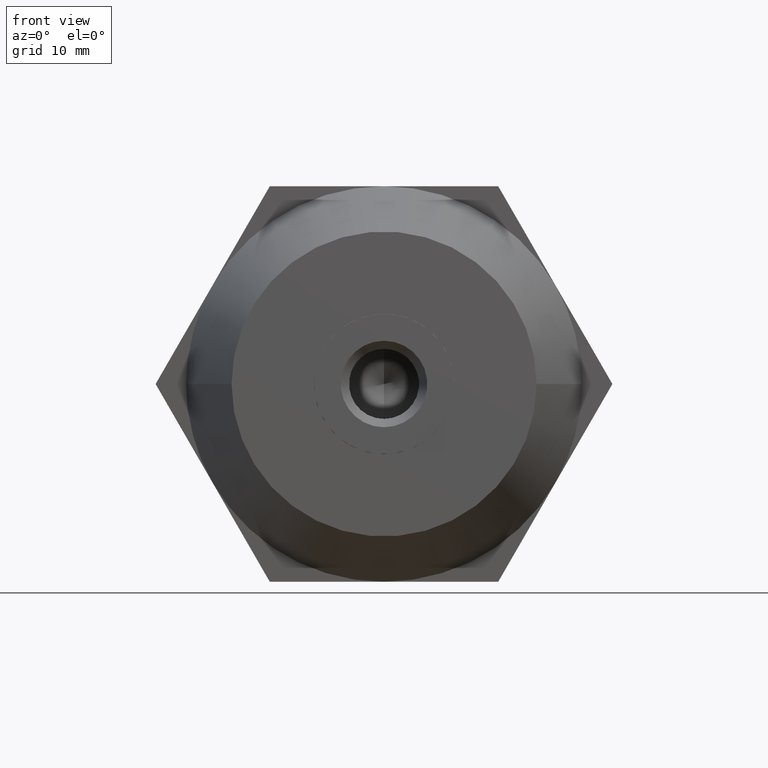
[diagram: clean part render]
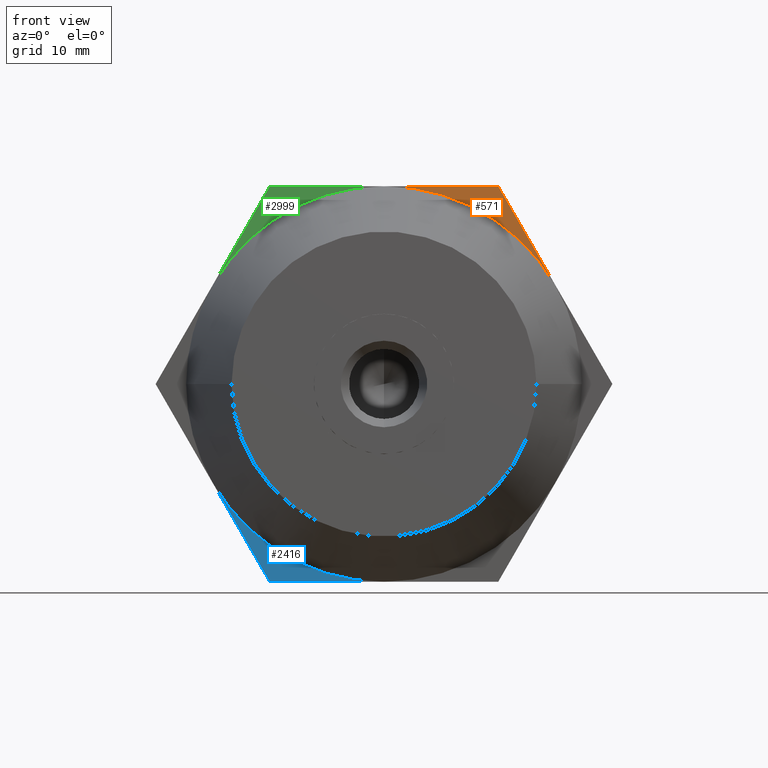
[diagram: same view with three faces highlighted in distinct colors, each labeled with its STEP entity id]
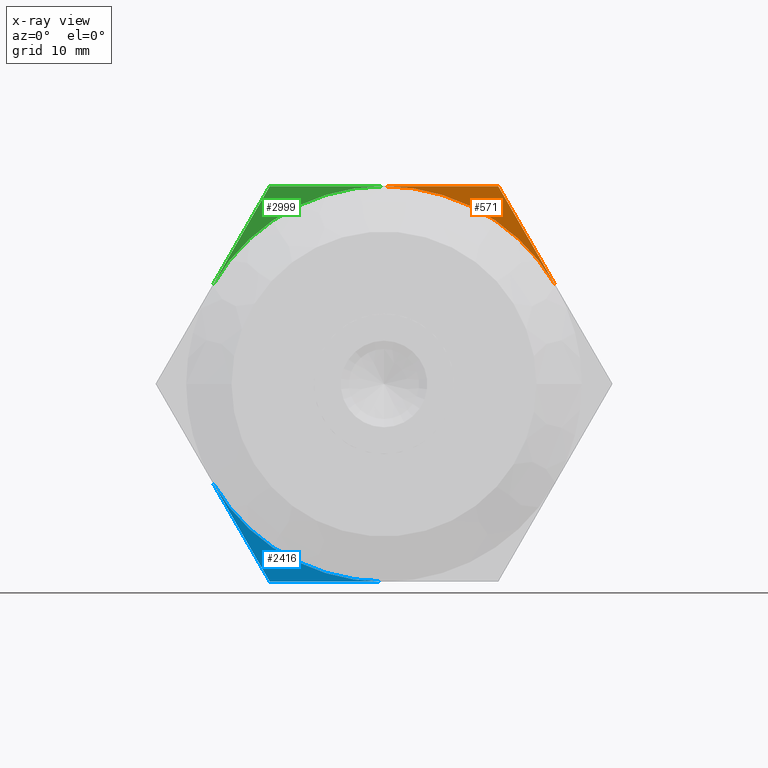
[diagram: x-ray of the same camera — body ghosted, the three highlighted faces saturated]
A machine part, front view with three faces highlighted in distinct colors.
The next image is the same camera in x-ray (body ghosted, the three faces saturated) — at least one of them is partly hidden behind the body in this view.
Their STEP definitions:

[orange] entity #571 — the highlighted planar face has unit normal (0, 1, 0).
#238 = CARTESIAN_POINT ( 'NONE',  ( 13.85640646055101900, -5.000000000000000000, 24.00000000000000000 ) ) ;
#358 = FACE_OUTER_BOUND ( 'NONE', #482, .T. ) ;
#363 = LINE ( 'NONE', #238, #3617 ) ;
#482 = EDGE_LOOP ( 'NONE', ( #2239, #2380, #1712 ) ) ;
#559 = CARTESIAN_POINT ( 'NONE',  ( 20.78460969082655300, -5.000000000000000000, 12.00000000000000000 ) ) ;
#571 = ADVANCED_FACE ( 'NONE', ( #358 ), #799, .F. ) ;
#799 = PLANE ( 'NONE',  #3301 ) ;
#1085 = CARTESIAN_POINT ( 'NONE',  ( 7.959741419701128200E-015, -5.000000000000000000, 6.060474499082429800E-016 ) ) ;
#1099 = DIRECTION ( 'NONE',  ( 0.0000000000000000000, 0.0000000000000000000, 1.000000000000000000 ) ) ;
#1350 = CARTESIAN_POINT ( 'NONE',  ( 13.85640646055101900, -5.000000000000000000, 24.00000000000000000 ) ) ;
#1352 = VECTOR ( 'NONE', #2660, 1000.000000000000000 ) ;
#1409 = DIRECTION ( 'NONE',  ( 0.0000000000000000000, 1.000000000000000000, 0.0000000000000000000 ) ) ;
#1502 = VERTEX_POINT ( 'NONE', #559 ) ;
#1712 = ORIENTED_EDGE ( 'NONE', *, *, #2620, .F. ) ;
#1751 = DIRECTION ( 'NONE',  ( 0.4999999999999998900, 0.0000000000000000000, -0.8660254037844387100 ) ) ;
#1878 = EDGE_CURVE ( 'NONE', #2828, #1502, #2073, .T. ) ;
#2004 = DIRECTION ( 'NONE',  ( 0.0000000000000000000, 1.000000000000000000, 0.0000000000000000000 ) ) ;
#2011 = VERTEX_POINT ( 'NONE', #1350 ) ;
#2073 = CIRCLE ( 'NONE', #3472, 24.00000000000000000 ) ;
#2239 = ORIENTED_EDGE ( 'NONE', *, *, #3844, .F. ) ;
#2266 = LINE ( 'NONE', #2629, #1352 ) ;
#2380 = ORIENTED_EDGE ( 'NONE', *, *, #1878, .T. ) ;
#2616 = DIRECTION ( 'NONE',  ( 0.0000000000000000000, 0.0000000000000000000, 1.000000000000000000 ) ) ;
#2620 = EDGE_CURVE ( 'NONE', #2011, #1502, #363, .T. ) ;
#2629 = CARTESIAN_POINT ( 'NONE',  ( -13.85640646055101900, -5.000000000000000000, 24.00000000000000000 ) ) ;
#2660 = DIRECTION ( 'NONE',  ( 1.000000000000000000, 0.0000000000000000000, 0.0000000000000000000 ) ) ;
#2828 = VERTEX_POINT ( 'NONE', #3567 ) ;
#3247 = CARTESIAN_POINT ( 'NONE',  ( 0.0000000000000000000, -5.000000000000000000, 0.0000000000000000000 ) ) ;
#3301 = AXIS2_PLACEMENT_3D ( 'NONE', #3247, #1409, #2616 ) ;
#3472 = AXIS2_PLACEMENT_3D ( 'NONE', #1085, #2004, #1099 ) ;
#3567 = CARTESIAN_POINT ( 'NONE',  ( 7.959741419701128200E-015, -5.000000000000000000, 24.00000000000000000 ) ) ;
#3617 = VECTOR ( 'NONE', #1751, 1000.000000000000000 ) ;
#3844 = EDGE_CURVE ( 'NONE', #2828, #2011, #2266, .T. ) ;

[blue] entity #2416 — the highlighted planar face has unit normal (0, 1, 0).
#3 = CARTESIAN_POINT ( 'NONE',  ( 13.85640646055101900, -5.000000000000000000, -24.00000000000000000 ) ) ;
#103 = DIRECTION ( 'NONE',  ( -1.000000000000000000, 0.0000000000000000000, -1.251928832280965700E-016 ) ) ;
#295 = VERTEX_POINT ( 'NONE', #1867 ) ;
#402 = EDGE_CURVE ( 'NONE', #2054, #2841, #2113, .T. ) ;
#726 = EDGE_LOOP ( 'NONE', ( #3309, #751, #3601 ) ) ;
#751 = ORIENTED_EDGE ( 'NONE', *, *, #2750, .T. ) ;
#787 = VECTOR ( 'NONE', #928, 1000.000000000000000 ) ;
#928 = DIRECTION ( 'NONE',  ( -0.4999999999999998900, 0.0000000000000000000, 0.8660254037844387100 ) ) ;
#1183 = AXIS2_PLACEMENT_3D ( 'NONE', #2215, #3141, #3452 ) ;
#1355 = DIRECTION ( 'NONE',  ( 0.0000000000000000000, 1.000000000000000000, 0.0000000000000000000 ) ) ;
#1867 = CARTESIAN_POINT ( 'NONE',  ( -20.78460969082655300, -5.000000000000000000, -12.00000000000000000 ) ) ;
#2054 = VERTEX_POINT ( 'NONE', #2274 ) ;
#2113 = LINE ( 'NONE', #3, #3125 ) ;
#2114 = CARTESIAN_POINT ( 'NONE',  ( -13.85640646055101900, -5.000000000000000000, -24.00000000000000000 ) ) ;
#2210 = EDGE_CURVE ( 'NONE', #2841, #295, #3670, .T. ) ;
#2215 = CARTESIAN_POINT ( 'NONE',  ( 0.0000000000000000000, -5.000000000000000000, 0.0000000000000000000 ) ) ;
#2274 = CARTESIAN_POINT ( 'NONE',  ( 1.096437061717544000E-014, -5.000000000000000000, -24.00000000000000000 ) ) ;
#2416 = ADVANCED_FACE ( 'NONE', ( #3566 ), #2457, .F. ) ;
#2457 = PLANE ( 'NONE',  #1183 ) ;
#2505 = CIRCLE ( 'NONE', #3070, 24.00000000000000000 ) ;
#2617 = CARTESIAN_POINT ( 'NONE',  ( -13.85640646055101900, -5.000000000000000000, -24.00000000000000000 ) ) ;
#2750 = EDGE_CURVE ( 'NONE', #2054, #295, #2505, .T. ) ;
#2841 = VERTEX_POINT ( 'NONE', #2617 ) ;
#3070 = AXIS2_PLACEMENT_3D ( 'NONE', #3226, #1355, #3549 ) ;
#3125 = VECTOR ( 'NONE', #103, 1000.000000000000000 ) ;
#3141 = DIRECTION ( 'NONE',  ( 0.0000000000000000000, 1.000000000000000000, 0.0000000000000000000 ) ) ;
#3226 = CARTESIAN_POINT ( 'NONE',  ( 7.959741419701128200E-015, -5.000000000000000000, 6.060474499082429800E-016 ) ) ;
#3309 = ORIENTED_EDGE ( 'NONE', *, *, #402, .F. ) ;
#3452 = DIRECTION ( 'NONE',  ( 0.0000000000000000000, 0.0000000000000000000, 1.000000000000000000 ) ) ;
#3549 = DIRECTION ( 'NONE',  ( 0.0000000000000000000, 0.0000000000000000000, 1.000000000000000000 ) ) ;
#3566 = FACE_OUTER_BOUND ( 'NONE', #726, .T. ) ;
#3601 = ORIENTED_EDGE ( 'NONE', *, *, #2210, .F. ) ;
#3670 = LINE ( 'NONE', #2114, #787 ) ;

[green] entity #2999 — the highlighted planar face has unit normal (0, 1, 0).
#283 = CARTESIAN_POINT ( 'NONE',  ( 0.0000000000000000000, -5.000000000000000000, 0.0000000000000000000 ) ) ;
#329 = DIRECTION ( 'NONE',  ( 0.0000000000000000000, 0.0000000000000000000, 1.000000000000000000 ) ) ;
#442 = LINE ( 'NONE', #786, #675 ) ;
#477 = ORIENTED_EDGE ( 'NONE', *, *, #1218, .F. ) ;
#675 = VECTOR ( 'NONE', #3483, 1000.000000000000000 ) ;
#786 = CARTESIAN_POINT ( 'NONE',  ( -27.71281292110205300, -5.000000000000000000, 5.147286277148779700E-015 ) ) ;
#909 = VERTEX_POINT ( 'NONE', #3963 ) ;
#1017 = CIRCLE ( 'NONE', #1802, 24.00000000000000000 ) ;
#1058 = FACE_OUTER_BOUND ( 'NONE', #3751, .T. ) ;
#1218 = EDGE_CURVE ( 'NONE', #909, #1465, #442, .T. ) ;
#1445 = DIRECTION ( 'NONE',  ( 9.182537119821829500E-017, 1.000000000000000000, 0.0000000000000000000 ) ) ;
#1465 = VERTEX_POINT ( 'NONE', #1505 ) ;
#1484 = DIRECTION ( 'NONE',  ( -1.000000000000000000, 1.084202172485504400E-016, 0.0000000000000000000 ) ) ;
#1505 = CARTESIAN_POINT ( 'NONE',  ( -13.85640646055101900, -5.000000000000000000, 24.00000000000000000 ) ) ;
#1657 = CARTESIAN_POINT ( 'NONE',  ( -13.85640646055101900, -5.000000000000000000, 24.00000000000000000 ) ) ;
#1802 = AXIS2_PLACEMENT_3D ( 'NONE', #3594, #1445, #1484 ) ;
#1827 = VECTOR ( 'NONE', #2608, 1000.000000000000000 ) ;
#2185 = AXIS2_PLACEMENT_3D ( 'NONE', #283, #2755, #329 ) ;
#2495 = ORIENTED_EDGE ( 'NONE', *, *, #2773, .F. ) ;
#2608 = DIRECTION ( 'NONE',  ( 1.000000000000000000, 0.0000000000000000000, 0.0000000000000000000 ) ) ;
#2614 = EDGE_CURVE ( 'NONE', #909, #2828, #1017, .T. ) ;
#2729 = PLANE ( 'NONE',  #2185 ) ;
#2755 = DIRECTION ( 'NONE',  ( 0.0000000000000000000, 1.000000000000000000, 0.0000000000000000000 ) ) ;
#2773 = EDGE_CURVE ( 'NONE', #1465, #2828, #3324, .T. ) ;
#2828 = VERTEX_POINT ( 'NONE', #3567 ) ;
#2999 = ADVANCED_FACE ( 'NONE', ( #1058 ), #2729, .F. ) ;
#3324 = LINE ( 'NONE', #1657, #1827 ) ;
#3399 = ORIENTED_EDGE ( 'NONE', *, *, #2614, .T. ) ;
#3483 = DIRECTION ( 'NONE',  ( 0.4999999999999998900, 0.0000000000000000000, 0.8660254037844387100 ) ) ;
#3567 = CARTESIAN_POINT ( 'NONE',  ( 7.959741419701128200E-015, -5.000000000000000000, 24.00000000000000000 ) ) ;
#3594 = CARTESIAN_POINT ( 'NONE',  ( 7.959741419701128200E-015, -5.000000000000000000, 0.0000000000000000000 ) ) ;
#3751 = EDGE_LOOP ( 'NONE', ( #477, #3399, #2495 ) ) ;
#3963 = CARTESIAN_POINT ( 'NONE',  ( -20.78460969082655300, -5.000000000000000000, 12.00000000000000000 ) ) ;